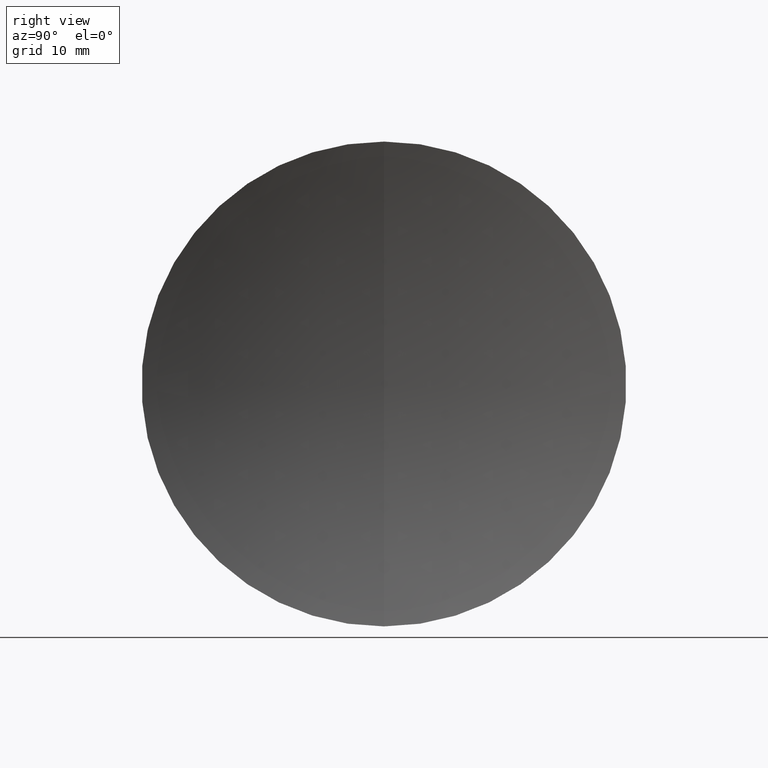
[diagram: clean part render]
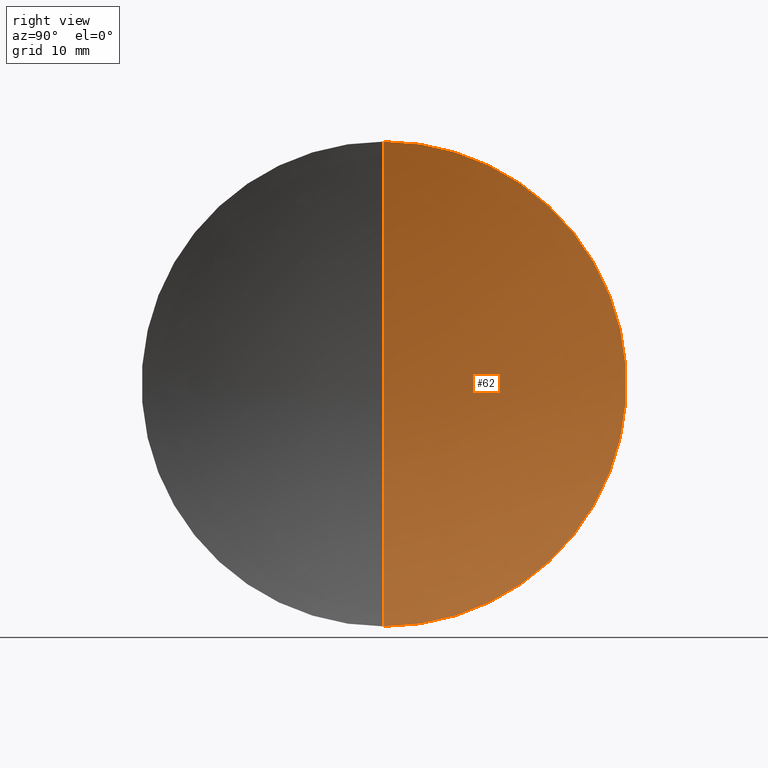
[diagram: same view with one face highlighted and labeled with its STEP entity id]
A machine part, right view. The second image highlights one B-rep face of the part: STEP entity #62.
In plain terms, the highlighted spherical surface has radius 83.6 mm.
Its self-contained STEP definition (entity closure, byte-faithful):
#3 = DIRECTION ( 'NONE',  ( 0.0000000000000000000, 1.224646799147353200E-016, -1.000000000000000000 ) ) ;
#4 = ORIENTED_EDGE ( 'NONE', *, *, #196, .T. ) ;
#25 = EDGE_CURVE ( 'NONE', #283, #174, #331, .T. ) ;
#56 = DIRECTION ( 'NONE',  ( 0.0000000000000000000, 0.0000000000000000000, 1.000000000000000000 ) ) ;
#62 = ADVANCED_FACE ( 'NONE', ( #115 ), #323, .F. ) ;
#64 = CARTESIAN_POINT ( 'NONE',  ( 199.8494437825909000, 0.0000000000000000000, 0.0000000000000000000 ) ) ;
#65 = CARTESIAN_POINT ( 'NONE',  ( 199.8494437825909000, 0.0000000000000000000, 0.0000000000000000000 ) ) ;
#66 = CARTESIAN_POINT ( 'NONE',  ( 116.2494437825908600, 0.0000000000000000000, -5.119023620435939000E-015 ) ) ;
#74 = ORIENTED_EDGE ( 'NONE', *, *, #25, .F. ) ;
#81 = DIRECTION ( 'NONE',  ( 0.0000000000000000000, 0.0000000000000000000, -1.000000000000000000 ) ) ;
#83 = CARTESIAN_POINT ( 'NONE',  ( 120.2014682904290900, 0.0000000000000000000, 0.0000000000000000000 ) ) ;
#115 = FACE_OUTER_BOUND ( 'NONE', #228, .T. ) ;
#121 = AXIS2_PLACEMENT_3D ( 'NONE', #140, #318, #81 ) ;
#140 = CARTESIAN_POINT ( 'NONE',  ( 199.8494437825909000, 0.0000000000000000000, 0.0000000000000000000 ) ) ;
#141 = AXIS2_PLACEMENT_3D ( 'NONE', #65, #255, #328 ) ;
#145 = CARTESIAN_POINT ( 'NONE',  ( 120.2014682904290900, 0.0000000000000000000, -25.39999999999995600 ) ) ;
#160 = ORIENTED_EDGE ( 'NONE', *, *, #177, .F. ) ;
#174 = VERTEX_POINT ( 'NONE', #145 ) ;
#177 = EDGE_CURVE ( 'NONE', #174, #238, #296, .T. ) ;
#179 = CIRCLE ( 'NONE', #181, 83.60000000000003700 ) ;
#181 = AXIS2_PLACEMENT_3D ( 'NONE', #64, #327, #3 ) ;
#196 = EDGE_CURVE ( 'NONE', #283, #238, #179, .T. ) ;
#228 = EDGE_LOOP ( 'NONE', ( #74, #4, #160 ) ) ;
#238 = VERTEX_POINT ( 'NONE', #66 ) ;
#248 = DIRECTION ( 'NONE',  ( -1.000000000000000000, -0.0000000000000000000, -0.0000000000000000000 ) ) ;
#255 = DIRECTION ( 'NONE',  ( 0.0000000000000000000, 1.000000000000000000, -0.0000000000000000000 ) ) ;
#283 = VERTEX_POINT ( 'NONE', #310 ) ;
#296 = CIRCLE ( 'NONE', #141, 83.60000000000003700 ) ;
#310 = CARTESIAN_POINT ( 'NONE',  ( 120.2014682904290900, -3.110602869834272500E-015, 25.39999999999995600 ) ) ;
#311 = AXIS2_PLACEMENT_3D ( 'NONE', #83, #248, #56 ) ;
#318 = DIRECTION ( 'NONE',  ( -0.0000000000000000000, -1.000000000000000000, -0.0000000000000000000 ) ) ;
#323 = SPHERICAL_SURFACE ( 'NONE', #121, 83.60000000000003700 ) ;
#327 = DIRECTION ( 'NONE',  ( 0.0000000000000000000, -1.000000000000000000, -1.224646799147353200E-016 ) ) ;
#328 = DIRECTION ( 'NONE',  ( 0.0000000000000000000, 0.0000000000000000000, 1.000000000000000000 ) ) ;
#331 = CIRCLE ( 'NONE', #311, 25.39999999999995600 ) ;